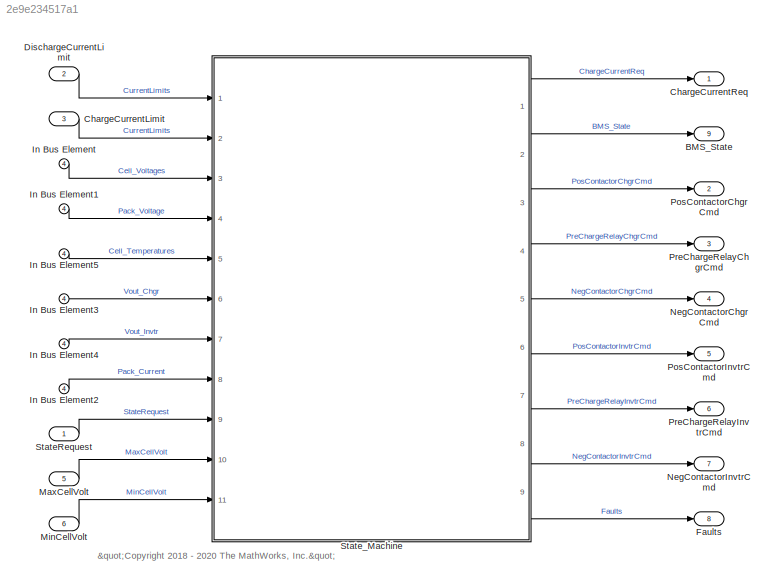
MODEL slx_2e9e234517a1
KIND model
BLOCK [Outport] BMS_State
  OutDataTypeStr = Enum: BMS_State_Enum
  Port = 9
  PortDimensions = 1
  SampleTime = [0.10000000000000001,0]
  SamplingMode = Sample based
  SignalType = real
  VectorParamsAs1DForOutWhenUnconnected = off
BLOCK [Inport] ChargeCurrentLimit
  Port = 3
BLOCK [Outport] ChargeCurrentReq
  OutDataTypeStr = single
  OutMax = 100
  OutMin = -100
  PortDimensions = 1
  SampleTime = [0.10000000000000001,0]
  SamplingMode = Sample based
  SignalType = real
  VectorParamsAs1DForOutWhenUnconnected = off
BLOCK [Inport] DischargeCurrentLimit
  Port = 2
BLOCK [Outport] Faults
  BusOutputAsStruct = on
  OutDataTypeStr = Bus: Faults
  Port = 8
  VectorParamsAs1DForOutWhenUnconnected = off
BLOCK [Inport] In Bus Element
  Port = 4
BLOCK [Inport] In Bus Element1
  Port = 4
BLOCK [Inport] In Bus Element2
  Port = 4
BLOCK [Inport] In Bus Element3
  Port = 4
BLOCK [Inport] In Bus Element4
  Port = 4
BLOCK [Inport] In Bus Element5
  Port = 4
BLOCK [Inport] MaxCellVolt
  OutDataTypeStr = single
  OutMax = 5
  OutMin = 0
  Port = 5
  PortDimensions = 1
  SampleTime = [0.10000000000000001,0]
  SamplingMode = Sample based
  SignalType = real
BLOCK [Inport] MinCellVolt
  OutDataTypeStr = single
  OutMax = 5
  OutMin = 0
  Port = 6
  PortDimensions = 1
  SampleTime = [0.10000000000000001,0]
  SamplingMode = Sample based
  SignalType = real
BLOCK [Outport] NegContactorChgrCmd
  OutDataTypeStr = boolean
  OutMax = 1
  OutMin = 0
  Port = 4
  PortDimensions = 1
  SampleTime = [0.10000000000000001,0]
  SamplingMode = Sample based
  SignalType = real
  VectorParamsAs1DForOutWhenUnconnected = off
BLOCK [Outport] NegContactorInvtrCmd
  OutDataTypeStr = boolean
  OutMax = 1
  OutMin = 0
  Port = 7
  PortDimensions = 1
  SampleTime = [0.10000000000000001,0]
  SamplingMode = Sample based
  SignalType = real
  VectorParamsAs1DForOutWhenUnconnected = off
BLOCK [Outport] PosContactorChgrCmd
  OutDataTypeStr = boolean
  OutMax = 1
  OutMin = 0
  Port = 2
  PortDimensions = 1
  SampleTime = [0.10000000000000001,0]
  SamplingMode = Sample based
  SignalType = real
  VectorParamsAs1DForOutWhenUnconnected = off
BLOCK [Outport] PosContactorInvtrCmd
  OutDataTypeStr = boolean
  OutMax = 1
  OutMin = 0
  Port = 5
  PortDimensions = 1
  SampleTime = [0.10000000000000001,0]
  SamplingMode = Sample based
  SignalType = real
  VectorParamsAs1DForOutWhenUnconnected = off
BLOCK [Outport] PreChargeRelayChgrCmd
  OutDataTypeStr = boolean
  OutMax = 1
  OutMin = 0
  Port = 3
  PortDimensions = 1
  SampleTime = [0.10000000000000001,0]
  SamplingMode = Sample based
  SignalType = real
  VectorParamsAs1DForOutWhenUnconnected = off
BLOCK [Outport] PreChargeRelayInvtrCmd
  OutDataTypeStr = boolean
  OutMax = 1
  OutMin = 0
  Port = 6
  PortDimensions = 1
  SampleTime = [0.10000000000000001,0]
  SamplingMode = Sample based
  SignalType = real
  VectorParamsAs1DForOutWhenUnconnected = off
BLOCK [Inport] StateRequest
  OutDataTypeStr = Enum: SRE
  PortDimensions = 1
  SampleTime = [0.10000000000000001,0]
  SamplingMode = Sample based
  SignalType = real
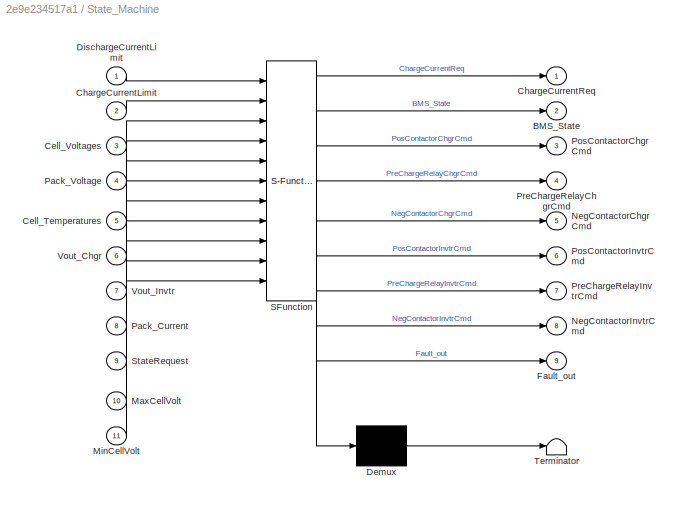
BLOCK [SubSystem] State_Machine
  ErrorFcn = Stateflow.Translate.translate
  PermitHierarchicalResolution = ExplicitOnly
  Ports = [11, 9]
  RequestExecContextInheritance = off
  SFBlockType = Chart
  TreatAsAtomicUnit = on
  VariantControl = (default)
BLOCK [Demux] State_Machine/ Demux 
  Outputs = 1
  Ports = [1, 1]
BLOCK [S-Function] State_Machine/ SFunction 
  EnableBusSupport = on
  FunctionName = sf_sfun
  Parameters = CV_Gain,HighTempLimit,I_cc,LowTempLimit,MaxCellVoltThrsld,OverCellVoltageLimit,SnsrFltThld,UnderCellVoltageLimit,contactorTime,currentFactor,noCurrent,timeoutContactor,timeoutCurrent,vRatio,voltThreshold
  PortCounts = [11 10]
  Ports = [11, 10]
  SFcnIsStateOwnerBlock = off
  SFunctionDeploymentMode = off
  Tag = Stateflow S-Function 2
BLOCK [Terminator] State_Machine/ Terminator 
BLOCK [Outport] State_Machine/BMS_State
  Port = 2
  VectorParamsAs1DForOutWhenUnconnected = off
BLOCK [Inport] State_Machine/Cell_Temperatures
  Port = 5
BLOCK [Inport] State_Machine/Cell_Voltages
  Port = 3
BLOCK [Inport] State_Machine/ChargeCurrentLimit
  Port = 2
BLOCK [Outport] State_Machine/ChargeCurrentReq
  VectorParamsAs1DForOutWhenUnconnected = off
BLOCK [Inport] State_Machine/DischargeCurrentLimit
BLOCK [Outport] State_Machine/Fault_out
  Port = 9
  VectorParamsAs1DForOutWhenUnconnected = off
BLOCK [Inport] State_Machine/MaxCellVolt
  Port = 10
BLOCK [Inport] State_Machine/MinCellVolt
  Port = 11
BLOCK [Outport] State_Machine/NegContactorChgrCmd
  Port = 5
  VectorParamsAs1DForOutWhenUnconnected = off
BLOCK [Outport] State_Machine/NegContactorInvtrCmd
  Port = 8
  VectorParamsAs1DForOutWhenUnconnected = off
BLOCK [Inport] State_Machine/Pack_Current
  Port = 8
BLOCK [Inport] State_Machine/Pack_Voltage
  Port = 4
BLOCK [Outport] State_Machine/PosContactorChgrCmd
  Port = 3
  VectorParamsAs1DForOutWhenUnconnected = off
BLOCK [Outport] State_Machine/PosContactorInvtrCmd
  Port = 6
  VectorParamsAs1DForOutWhenUnconnected = off
BLOCK [Outport] State_Machine/PreChargeRelayChgrCmd
  Port = 4
  VectorParamsAs1DForOutWhenUnconnected = off
BLOCK [Outport] State_Machine/PreChargeRelayInvtrCmd
  Port = 7
  VectorParamsAs1DForOutWhenUnconnected = off
BLOCK [Inport] State_Machine/StateRequest
  Port = 9
BLOCK [Inport] State_Machine/Vout_Chgr
  Port = 6
BLOCK [Inport] State_Machine/Vout_Invtr
  Port = 7
ANNOTATION (root): "<copyright redacted>
LINE ChargeCurrentLimit:1 -> State_Machine:2
LINE DischargeCurrentLimit:1 -> State_Machine:1
LINE In Bus Element1:1 -> State_Machine:4
LINE In Bus Element2:1 -> State_Machine:8
LINE In Bus Element3:1 -> State_Machine:6
LINE In Bus Element4:1 -> State_Machine:7
LINE In Bus Element5:1 -> State_Machine:5
LINE In Bus Element:1 -> State_Machine:3
LINE MaxCellVolt:1 -> State_Machine:10
LINE MinCellVolt:1 -> State_Machine:11
LINE StateRequest:1 -> State_Machine:9
LINE State_Machine:1 -> ChargeCurrentReq:1
LINE State_Machine:2 -> BMS_State:1
LINE State_Machine:3 -> PosContactorChgrCmd:1
LINE State_Machine:4 -> PreChargeRelayChgrCmd:1
LINE State_Machine:5 -> NegContactorChgrCmd:1
LINE State_Machine:6 -> PosContactorInvtrCmd:1
LINE State_Machine:7 -> PreChargeRelayInvtrCmd:1
LINE State_Machine:8 -> NegContactorInvtrCmd:1
LINE State_Machine:9 -> Faults:1
CHART State_Machine states=45 transitions=54
  STATE_LABEL 'FaultMonitoring'
  STATE_LABEL 'MonitorCurrLim'
  STATE_LABEL 'NoCurrLimFault\n\n'
  STATE_LABEL 'OverCurrentFault\nen:\nFaultPresent = true;\nFault_out.OverCurrent=true;\n'
  STATE_LABEL '{FaultPresent = false;\nFault_out.OverCurrent=false;}'
  STATE_LABEL '[duration(((DischargeCurrentLimit - Pack_Current)<single(0.2) || ...\n(Pack_Current - ChargeCurrentLimit) < single(0.2)) > timeoutCurrent,sec)]'
  STATE_LABEL 'MonitorCellVoltage'
  STATE_LABEL 'OverVoltageFault\nen:\nFaultPresent = true;\nFault_out.OverVolt = true;'
  STATE_LABEL 'NoCellVoltFault\nen,du:\nSumOfVoltages = sum(Cell_Voltages);\nDelta = abs(Pack_Voltage - SumOfVoltages);\n'
  STATE_LABEL 'SensorFaut\nen:\nFaultPresent = true;\nFault_out.VoltSensor = true;'
  STATE_LABEL 'UnderVoltageFault\nen:\nFaultPresent = true;\nFault_out.UnderVolt = true;'
  STATE_LABEL '{FaultPresent = false;\nFault_out.OverVolt = false;\nFault_out.UnderVolt = false;\nFault_out.VoltSensor = false;\n}'
  STATE_LABEL '[MaxCellVolt >= ...\nOverCellVoltageLimit]'
  STATE_LABEL '[Delta >=...\n single(SnsrFltThld)]'
  STATE_LABEL '[MinCellVolt <=...\n UnderCellVoltageLimit]'
  STATE_LABEL 'MonitorCellTemp'
  STATE_LABEL 'HighTemperatureFault\nen:\nFaultPresent = true;\nFault_out.HighTemp = true;'
  STATE_LABEL 'NoCellTempFault\nen,du:\nMaxCellTemp = max(Cell_Temperatures);\nMinCellTemp = min(Cell_Temperatures);'
  STATE_LABEL 'LowTemperatureFault\nen:\nFaultPresent = true;\nFault_out.LowTemp = true;'
  STATE_LABEL '{FaultPresent = false;\nFault_out.HighTemp = false;\nFault_out.LowTemp = false;}'
  STATE_LABEL '[MaxCellTemp >= HighTempLimit]'
  STATE_LABEL '[MinCellTemp <= LowTempLimit]'
  STATE_LABEL 'MonitorCurrLim'
  STATE_LABEL 'NoCurrLimFault\n\n'
  STATE_LABEL 'OverCurrentFault\nen:\nFaultPresent = true;\nFault_out.OverCurrent=true;\n'
  STATE_LABEL '{FaultPresent = false;\nFault_out.OverCurrent=false;}'
  STATE_LABEL '[duration(((DischargeCurrentLimit - Pack_Current)<single(0.2) || ...\n(Pack_Current - ChargeCurrentLimit) < single(0.2)) > timeoutCurrent,sec)]'
  STATE_LABEL 'NoCurrLimFault\n\n'
  STATE_LABEL 'OverCurrentFault\nen:\nFaultPresent = true;\nFault_out.OverCurrent=true;\n'
  STATE_LABEL 'MonitorCellVoltage'
  STATE_LABEL 'OverVoltageFault\nen:\nFaultPresent = true;\nFault_out.OverVolt = true;'
  STATE_LABEL 'NoCellVoltFault\nen,du:\nSumOfVoltages = sum(Cell_Voltages);\nDelta = abs(Pack_Voltage - SumOfVoltages);\n'
  STATE_LABEL 'SensorFaut\nen:\nFaultPresent = true;\nFault_out.VoltSensor = true;'
  STATE_LABEL 'UnderVoltageFault\nen:\nFaultPresent = true;\nFault_out.UnderVolt = true;'
  STATE_LABEL '{FaultPresent = false;\nFault_out.OverVolt = false;\nFault_out.UnderVolt = false;\nFault_out.VoltSensor = false;\n}'
  STATE_LABEL '[MaxCellVolt >= ...\nOverCellVoltageLimit]'
  STATE_LABEL '[Delta >=...\n single(SnsrFltThld)]'
  STATE_LABEL '[MinCellVolt <=...\n UnderCellVoltageLimit]'
  STATE_LABEL 'OverVoltageFault\nen:\nFaultPresent = true;\nFault_out.OverVolt = true;'
  STATE_LABEL 'NoCellVoltFault\nen,du:\nSumOfVoltages = sum(Cell_Voltages);\nDelta = abs(Pack_Voltage - SumOfVoltages);\n'
CHART  states=0 transitions=0
